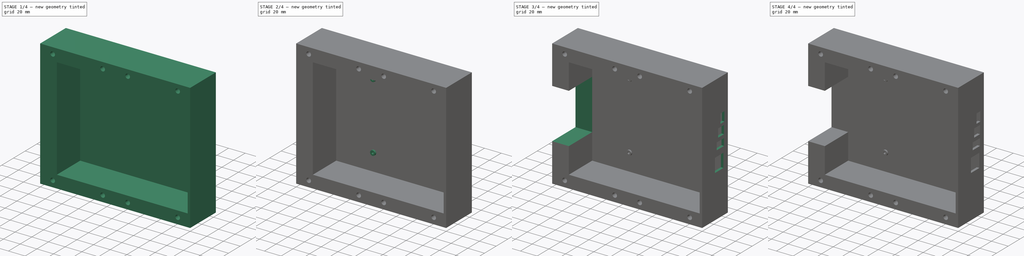
[diagram: build sequence overview — one tinted view per stage of 4, left to right]
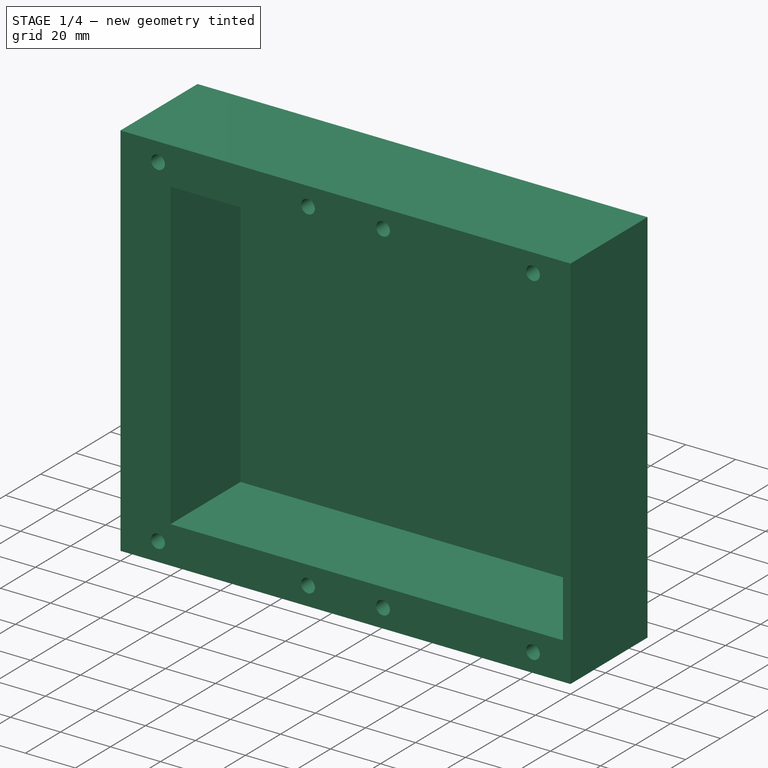
[diagram: stage 1 of 4 — iso view after this stage's code; geometry added in this stage tinted green]
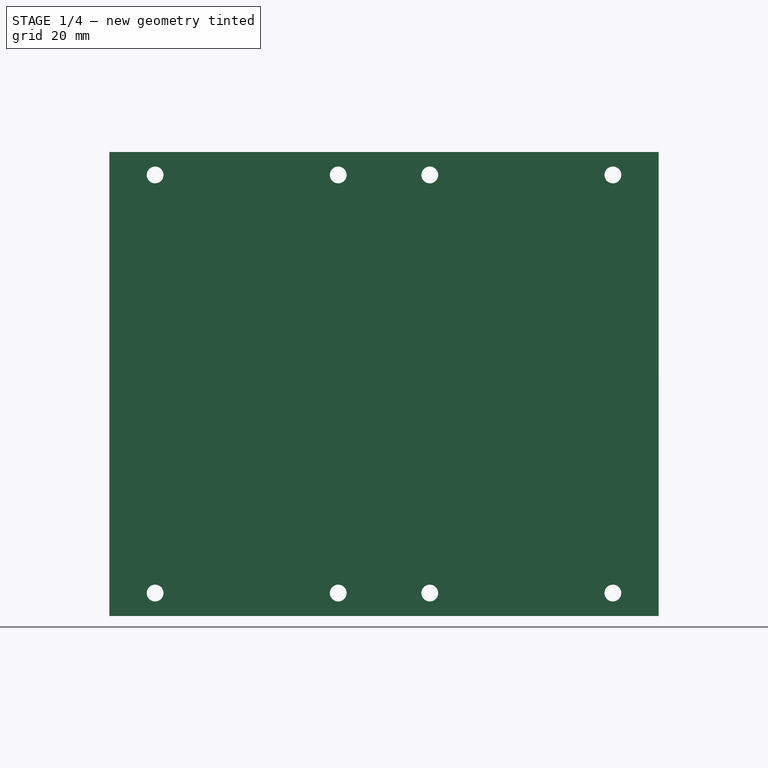
[diagram: stage 1 of 4 — front view after this stage's code; geometry added in this stage tinted green]
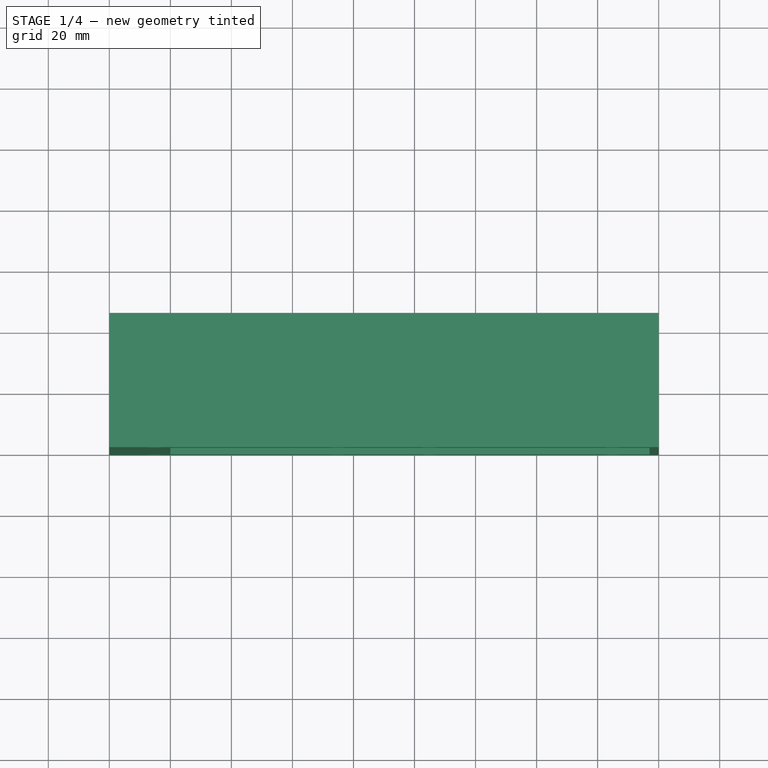
[diagram: stage 1 of 4 — top view after this stage's code; geometry added in this stage tinted green]
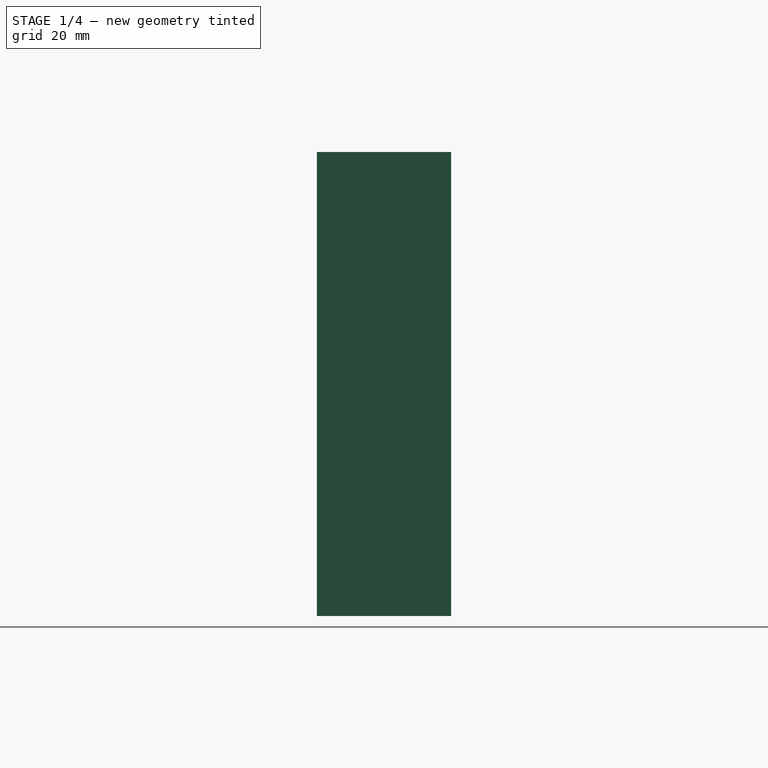
[diagram: stage 1 of 4 — right view after this stage's code; geometry added in this stage tinted green]
FCSTD DOCUMENT  (FreeCAD 1.0R39319 (Git))
Label: C1046
License: All rights reserved
LicenseURL: https://en.wikipedia.org/wiki/All_rights_reserved
objects: Sketcher::SketchObject×9, PartDesign::Pocket×7, PartDesign::Pad×3, PartDesign::Chamfer×2, PartDesign::Body×1
note: 55 computed .brp shape members not serialized (recipe doc carries the construction recipe); baked Part::Feature solids carry a one-line shape summary decoded from their .brp

FEATURE [Sketcher::SketchObject] Sketch
  ArcFitTolerance = 1e-06
  AttachmentSupport = -> [XZ_Plane]
  FullyConstrained = true
  MakeInternals = false
  MapMode = 5
  Placement = pos=(0,0,0) rot=(1,0,0;1.5708rad)
  expr: Constraints[9] = 90 * 2 * 1 mm
  sketch-geometry (12):
    g0: LineSegment StartX=0 StartY=0 StartZ=0 EndX=0 EndY=152 EndZ=0
    g1: LineSegment StartX=0 StartY=152 StartZ=0 EndX=-180 EndY=152 EndZ=0
    g2: LineSegment StartX=-180 StartY=152 StartZ=0 EndX=-180 EndY=0 EndZ=0
    g3: LineSegment StartX=-180 StartY=0 StartZ=0 EndX=0 EndY=0 EndZ=0
    g4: LineSegment StartX=-3 StartY=137 StartZ=0 EndX=-160 EndY=137 EndZ=0
    g5: LineSegment StartX=-160 StartY=137 StartZ=0 EndX=-160 EndY=15 EndZ=0
    g6: LineSegment StartX=-160 StartY=15 StartZ=0 EndX=-3 EndY=15 EndZ=0
    g7: LineSegment StartX=-3 StartY=15 StartZ=0 EndX=-3 EndY=137 EndZ=0
    g8: LineSegment [constr] StartX=-3 StartY=137 StartZ=0 EndX=0 EndY=152 EndZ=0
    g9: LineSegment [constr] StartX=-3 StartY=15 StartZ=0 EndX=0 EndY=0 EndZ=0
    g10: LineSegment [constr] StartX=-160 StartY=15 StartZ=0 EndX=-180 EndY=0 EndZ=0
    g11: LineSegment [constr] StartX=-160 StartY=137 StartZ=0 EndX=-180 EndY=152 EndZ=0
  constraints (32):
    c: Coincident(g0,g1)
    c: Coincident(g1,g2)
    c: Coincident(g2,g3)
    c: Coincident(g3,g0)
    c: Vertical(g0)
    c: Vertical(g2)
    c: Horizontal(g1)
    c: Horizontal(g3)
    c: Coincident(g0,g-1)
    c: DistanceX(g1,g1) = 180
    c: DistanceY(g2,g2) = 152
    c: Coincident(g4,g5)
    c: Coincident(g5,g6)
    c: Coincident(g6,g7)
    c: Coincident(g7,g4)
    c: Horizontal(g4)
    c: Horizontal(g6)
    c: Vertical(g5)
    c: Vertical(g7)
    c: Coincident(g8,g4)
    c: Coincident(g8,g0)
    c: Coincident(g9,g6)
    c: Coincident(g9,g0)
    c: Coincident(g10,g5)
    c: Coincident(g10,g2)
    c: Coincident(g11,g4)
    c: Coincident(g11,g1)
    c: DistanceY(g8,g8) = 15
    c: DistanceX(g8,g8) = 3
    c: DistanceX(g11,g11) = 20
    c: Equal(g9,g8)
    c: DistanceY(g7,g7) = 122
FEATURE [PartDesign::Pad] Pad
  Direction = (0,-1,2e-16)
  Length = 40
  Length2 = 10
  Placement = pos=(0,0,0) rot=(1,0,0;1.5708rad)
  Profile = -> Sketch
  ReferenceAxis = -> Sketch [N_Axis]
  Refine = true
  Suppressed = false
  Type = 0
FEATURE [Sketcher::SketchObject] Sketch001
  ArcFitTolerance = 1e-06
  AttachmentSupport = -> [Pad]
  ExternalGeometry = -> [Pad]
  FullyConstrained = true
  MakeInternals = false
  MapMode = 5
  Placement = pos=(0,1.69e-14,0) rot=(-1,0,0;1.5708rad)
  sketch-geometry (4):
    g0: LineSegment StartX=0 StartY=0 StartZ=0 EndX=-180 EndY=0 EndZ=0
    g1: LineSegment StartX=-180 StartY=0 StartZ=0 EndX=-180 EndY=-152 EndZ=0
    g2: LineSegment StartX=-180 StartY=-152 StartZ=0 EndX=0 EndY=-152 EndZ=0
    g3: LineSegment StartX=0 StartY=-152 StartZ=0 EndX=0 EndY=0 EndZ=0
  constraints (10):
    c: Coincident(g0,g1)
    c: Coincident(g1,g2)
    c: Coincident(g2,g3)
    c: Coincident(g3,g0)
    c: Horizontal(g0)
    c: Horizontal(g2)
    c: Vertical(g1)
    c: Vertical(g3)
    c: Coincident(g0,g-1)
    c: Coincident(g1,g-3)
FEATURE [PartDesign::Pad] Pad001
  BaseFeature = -> Pad
  Direction = (0,1,2e-16)
  Length = 4
  Length2 = 10
  Placement = pos=(0,0,0) rot=(1,0,0;1.5708rad)
  Profile = -> Sketch001
  ReferenceAxis = -> Sketch001 [N_Axis]
  Refine = true
  Suppressed = false
  Type = 0
FEATURE [Sketcher::SketchObject] Sketch002
  ArcFitTolerance = 1e-06
  AttachmentSupport = -> [Pad001]
  ExternalGeometry = -> [Pad001]
  FullyConstrained = true
  MakeInternals = false
  MapMode = 5
  Placement = pos=(0,4,0) rot=(-1,0,0;1.5708rad)
  sketch-geometry (28):
    g0: Circle CenterX=-75 CenterY=-7.5 CenterZ=0 NormalX=0 NormalY=0 NormalZ=1 AngleXU=0 Radius=2.75
    g1: Circle CenterX=-75 CenterY=-144.5 CenterZ=0 NormalX=0 NormalY=0 NormalZ=1 AngleXU=0 Radius=2.75
    g2: Circle CenterX=-15 CenterY=-7.5 CenterZ=0 NormalX=0 NormalY=0 NormalZ=1 AngleXU=0 Radius=2.75
    g3: Circle CenterX=-15 CenterY=-144.5 CenterZ=0 NormalX=0 NormalY=0 NormalZ=1 AngleXU=0 Radius=2.75
    g4: LineSegment [constr] StartX=-75 StartY=-7.5 StartZ=0 EndX=-15 EndY=-7.5 EndZ=0
    g5: LineSegment [constr] StartX=-15 StartY=-7.5 StartZ=0 EndX=-15 EndY=-144.5 EndZ=0
    g6: LineSegment [constr] StartX=-75 StartY=-144.5 StartZ=0 EndX=-15 EndY=-144.5 EndZ=0
    g7: LineSegment [constr] StartX=-75 StartY=-144.5 StartZ=0 EndX=-75 EndY=-7.5 EndZ=0
    g8: LineSegment [constr] StartX=-15 StartY=-144.5 StartZ=0 EndX=0 EndY=-152 EndZ=0
    g9: LineSegment [constr] StartX=-15 StartY=-7.5 StartZ=0 EndX=0 EndY=0 EndZ=0
    g10: LineSegment [constr] StartX=0 StartY=0 StartZ=0 EndX=-90 EndY=0 EndZ=0
    g11: LineSegment [constr] StartX=-90 StartY=0 StartZ=0 EndX=-90 EndY=-152 EndZ=0
    g12: LineSegment [constr] StartX=-90 StartY=-152 StartZ=0 EndX=0 EndY=-152 EndZ=0
    g13: LineSegment [constr] StartX=0 StartY=-152 StartZ=0 EndX=0 EndY=0 EndZ=0
    g14: LineSegment [constr] StartX=-90 StartY=-152 StartZ=0 EndX=-90 EndY=0 EndZ=0
    g15: LineSegment [constr] StartX=-90 StartY=0 StartZ=0 EndX=-180 EndY=0 EndZ=0
    g16: LineSegment [constr] StartX=-180 StartY=0 StartZ=0 EndX=-180 EndY=-152 EndZ=0
    g17: LineSegment [constr] StartX=-180 StartY=-152 StartZ=0 EndX=-90 EndY=-152 EndZ=0
    g18: Circle CenterX=-105 CenterY=-7.5 CenterZ=0 NormalX=0 NormalY=0 NormalZ=1 AngleXU=0 Radius=2.75
    g19: Circle CenterX=-165 CenterY=-7.5 CenterZ=0 NormalX=0 NormalY=0 NormalZ=1 AngleXU=0 Radius=2.75
    g20: Circle CenterX=-165 CenterY=-144.5 CenterZ=0 NormalX=0 NormalY=0 NormalZ=1 AngleXU=0 Radius=2.75
    g21: Circle CenterX=-105 CenterY=-144.5 CenterZ=0 NormalX=0 NormalY=0 NormalZ=1 AngleXU=0 Radius=2.75
    g22: LineSegment [constr] StartX=-75 StartY=-144.5 StartZ=0 EndX=-105 EndY=-144.5 EndZ=0
    g23: LineSegment [constr] StartX=-105 StartY=-144.5 StartZ=0 EndX=-165 EndY=-144.5 EndZ=0
    g24: LineSegment [constr] StartX=-165 StartY=-144.5 StartZ=0 EndX=-165 EndY=-7.5 EndZ=0
    g25: LineSegment [constr] StartX=-165 StartY=-7.5 StartZ=0 EndX=-105 EndY=-7.5 EndZ=0
    g26: LineSegment [constr] StartX=-105 StartY=-7.5 StartZ=0 EndX=-105 EndY=-144.5 EndZ=0
    g27: LineSegment [constr] StartX=-105 StartY=-7.5 StartZ=0 EndX=-75 EndY=-7.5 EndZ=0
  constraints (68):
    c: Coincident(g4,g0)
    c: Coincident(g4,g2)
    c: Coincident(g5,g2)
    c: Coincident(g5,g3)
    c: Coincident(g6,g1)
    c: Coincident(g6,g3)
    c: Coincident(g7,g1)
    c: Coincident(g7,g0)
    c: Vertical(g7)
    c: DistanceY(g7,g7) = 137
    c: DistanceX(g4,g4) = 60
    c: Horizontal(g4)
    c: Horizontal(g6)
    c: Vertical(g5)
    c: Diameter(g2) = 5.5
    c: Equal(g0,g2)
    c: Equal(g2,g3)
    c: Equal(g3,g1)
    c: Coincident(g8,g3)
    c: Coincident(g9,g2)
    c: Equal(g9,g8)
    c: DistanceX(g9,g9) = 15
    c: Coincident(g8,g-3)
    c: Coincident(g9,g-1)
    c: Coincident(g10,g11)
    c: Coincident(g11,g12)
    c: Coincident(g12,g13)
    c: Coincident(g13,g10)
    c: Horizontal(g10)
    c: Horizontal(g12)
    c: Vertical(g11)
    c: Coincident(g10,g9)
    c: Coincident(g14,g15)
    c: Coincident(g15,g16)
    c: Coincident(g16,g17)
    c: Coincident(g17,g14)
    c: Vertical(g16)
    c: Horizontal(g15)
    c: Horizontal(g17)
    c: Coincident(g14,g11)
    c: Coincident(g14,g10)
    c: DistanceX(g12,g12) = 90
    c: DistanceX(g17,g17) = 90
    c: Coincident(g8,g12)
    c: Coincident(g22,g1)
    c: Coincident(g22,g21)
    c: Coincident(g23,g21)
    c: Coincident(g23,g20)
    c: Horizontal(g23)
    c: Coincident(g24,g20)
    c: Coincident(g24,g19)
    c: Coincident(g25,g19)
    c: Coincident(g25,g18)
    c: Horizontal(g25)
    c: Coincident(g26,g18)
    c: Coincident(g26,g21)
    c: Vertical(g26)
    c: Horizontal(g22)
    c: Equal(g21,g20)
    c: Equal(g20,g18)
    c: Equal(g18,g19)
    c: Equal(g19,g0)
    c: Vertical(g24)
    c: DistanceX(g21,g11) = 15
    c: Coincident(g27,g0)
    c: Horizontal(g27)
    c: Coincident(g18,g27)
    c: Equal(g25,g4)
FEATURE [PartDesign::Pocket] Pocket
  BaseFeature = -> Pad001
  Direction = (0,-1,-2e-16)
  Length = 5
  Length2 = 5
  Placement = pos=(0,0,0) rot=(1,0,0;1.5708rad)
  Profile = -> Sketch002
  ReferenceAxis = -> Sketch002 [N_Axis]
  Refine = true
  Suppressed = false
  Type = 1
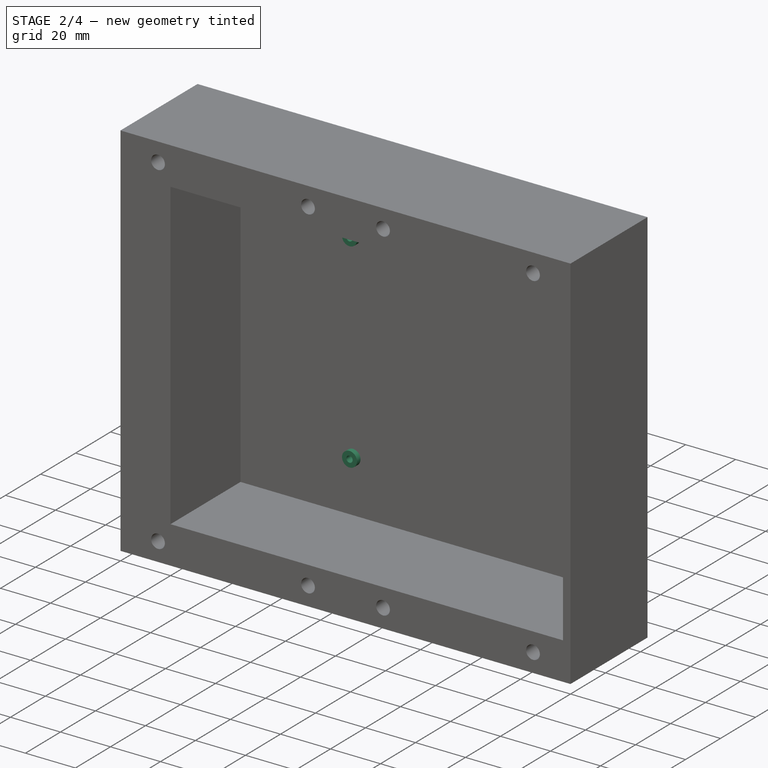
[diagram: stage 2 of 4 — iso view after this stage's code; geometry added in this stage tinted green]
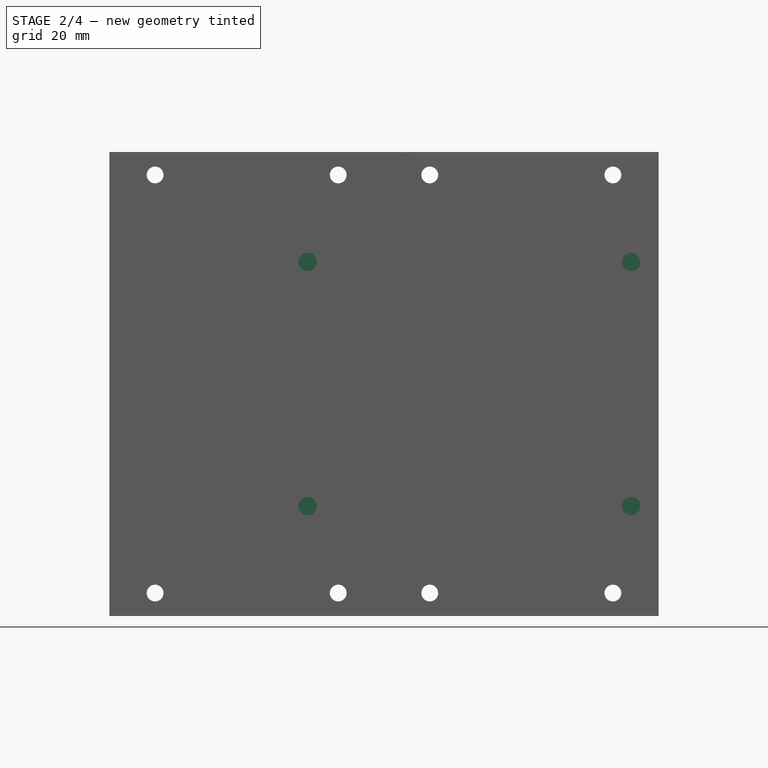
[diagram: stage 2 of 4 — front view after this stage's code; geometry added in this stage tinted green]
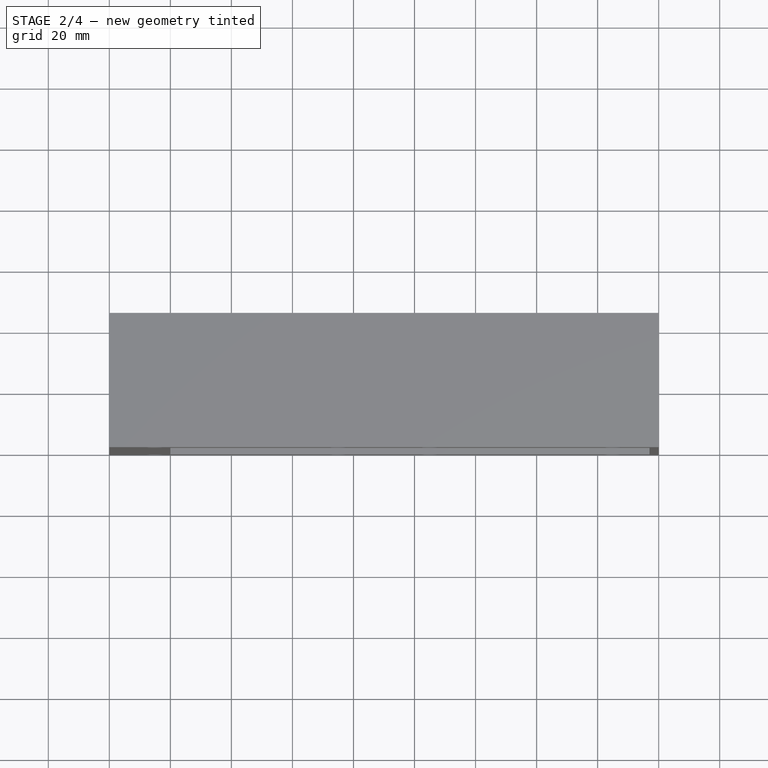
[diagram: stage 2 of 4 — top view after this stage's code; geometry added in this stage tinted green]
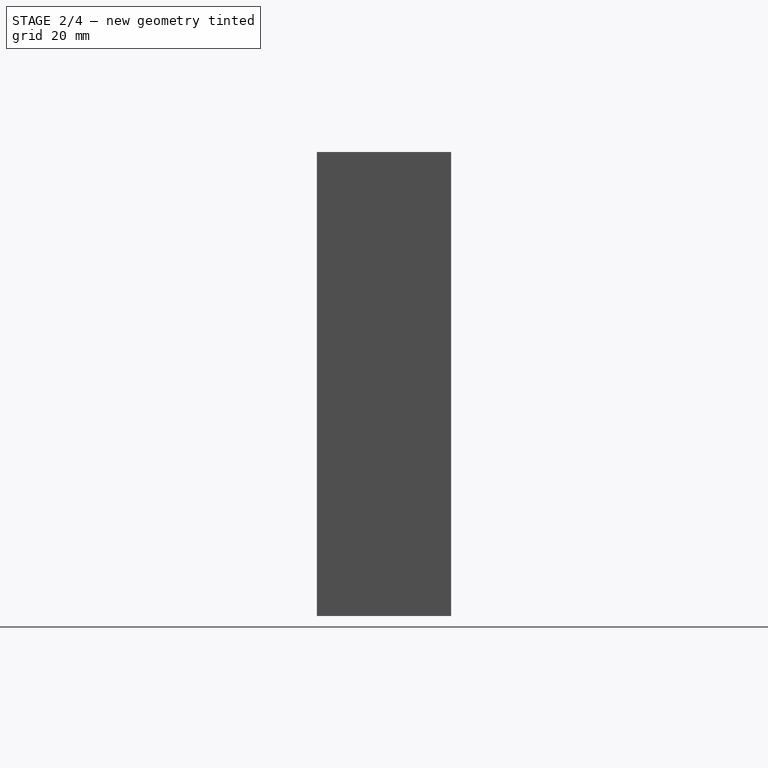
[diagram: stage 2 of 4 — right view after this stage's code; geometry added in this stage tinted green]
FEATURE [Sketcher::SketchObject] Sketch003
  ArcFitTolerance = 1e-06
  AttachmentSupport = -> [Pocket]
  ExternalGeometry = -> [Pocket]
  FullyConstrained = true
  MakeInternals = false
  MapMode = 5
  Placement = pos=(0,4,0) rot=(-1,0,0;1.5708rad)
  sketch-geometry (8):
    g0: Circle CenterX=-15 CenterY=-144.5 CenterZ=0 NormalX=0 NormalY=0 NormalZ=1 AngleXU=0 Radius=5
    g1: Circle CenterX=-15 CenterY=-7.5 CenterZ=0 NormalX=0 NormalY=0 NormalZ=1 AngleXU=0 Radius=5
    g2: Circle CenterX=-75 CenterY=-7.5 CenterZ=0 NormalX=0 NormalY=0 NormalZ=1 AngleXU=0 Radius=5
    g3: Circle CenterX=-105 CenterY=-7.5 CenterZ=0 NormalX=0 NormalY=0 NormalZ=1 AngleXU=0 Radius=5
    g4: Circle CenterX=-165 CenterY=-7.5 CenterZ=0 NormalX=0 NormalY=0 NormalZ=1 AngleXU=0 Radius=5
    g5: Circle CenterX=-165 CenterY=-144.5 CenterZ=0 NormalX=0 NormalY=0 NormalZ=1 AngleXU=0 Radius=5
    g6: Circle CenterX=-105 CenterY=-144.5 CenterZ=0 NormalX=0 NormalY=0 NormalZ=1 AngleXU=0 Radius=5
    g7: Circle CenterX=-75 CenterY=-144.5 CenterZ=0 NormalX=0 NormalY=0 NormalZ=1 AngleXU=0 Radius=5
  constraints (16):
    c: Coincident(g0,g-10)
    c: Coincident(g1,g-3)
    c: Coincident(g2,g-4)
    c: Coincident(g3,g-5)
    c: Coincident(g4,g-6)
    c: Coincident(g5,g-7)
    c: Coincident(g6,g-8)
    c: Coincident(g7,g-9)
    c: Equal(g1,g2)
    c: Equal(g2,g3)
    c: Equal(g3,g4)
    c: Equal(g4,g0)
    c: Equal(g0,g5)
    c: Equal(g5,g6)
    c: Equal(g6,g7)
    c: Diameter(g1) = 10
FEATURE [PartDesign::Pocket] Pocket001
  BaseFeature = -> Pocket
  Direction = (0,-1,-2e-16)
  Length = 34
  Length2 = 5
  Placement = pos=(0,0,0) rot=(1,0,0;1.5708rad)
  Profile = -> Sketch003
  ReferenceAxis = -> Sketch003 [N_Axis]
  Refine = true
  Suppressed = false
  Type = 0
FEATURE [Sketcher::SketchObject] Sketch004
  ArcFitTolerance = 1e-06
  AttachmentSupport = -> [Pocket001]
  ExternalGeometry = -> [Pocket001]
  FullyConstrained = true
  MakeInternals = false
  MapMode = 5
  Placement = pos=(0,0,0) rot=(1,0,0;1.5708rad)
  sketch-geometry (21):
    g0: LineSegment [constr] StartX=-4 StartY=121 StartZ=0 EndX=-120 EndY=121 EndZ=0
    g1: LineSegment [constr] StartX=-120 StartY=121 StartZ=0 EndX=-120 EndY=31 EndZ=0
    g2: LineSegment [constr] StartX=-120 StartY=31 StartZ=0 EndX=-4 EndY=31 EndZ=0
    g3: LineSegment [constr] StartX=-4 StartY=31 StartZ=0 EndX=-4 EndY=121 EndZ=0
    g4: LineSegment [constr] StartX=-3 StartY=137 StartZ=0 EndX=-4 EndY=121 EndZ=0
    g5: LineSegment [constr] StartX=-4 StartY=31 StartZ=0 EndX=-3 EndY=15 EndZ=0
    g6: Circle CenterX=-9 CenterY=116 CenterZ=0 NormalX=0 NormalY=0 NormalZ=1 AngleXU=0 Radius=1.25
    g7: Circle CenterX=-9 CenterY=36 CenterZ=0 NormalX=0 NormalY=0 NormalZ=1 AngleXU=0 Radius=1.25
    g8: Circle CenterX=-115 CenterY=36 CenterZ=0 NormalX=0 NormalY=0 NormalZ=1 AngleXU=0 Radius=1.25
    g9: Circle CenterX=-115 CenterY=116 CenterZ=0 NormalX=0 NormalY=0 NormalZ=1 AngleXU=0 Radius=1.25
    g10: Circle CenterX=-115 CenterY=116 CenterZ=0 NormalX=0 NormalY=0 NormalZ=1 AngleXU=0 Radius=3
    g11: Circle CenterX=-9 CenterY=116 CenterZ=0 NormalX=0 NormalY=0 NormalZ=1 AngleXU=0 Radius=3
    g12: Circle CenterX=-115 CenterY=36 CenterZ=0 NormalX=0 NormalY=0 NormalZ=1 AngleXU=0 Radius=3
    g13: Circle CenterX=-9 CenterY=36 CenterZ=0 NormalX=0 NormalY=0 NormalZ=1 AngleXU=0 Radius=3
    g14: LineSegment [constr] StartX=-4 StartY=121 StartZ=0 EndX=-9 EndY=116 EndZ=0
    g15: LineSegment [constr] StartX=-9 StartY=36 StartZ=0 EndX=-4 EndY=31 EndZ=0
    g16: LineSegment [constr] StartX=-115 StartY=36 StartZ=0 EndX=-120 EndY=31 EndZ=0
    g17: LineSegment [constr] StartX=-115 StartY=116 StartZ=0 EndX=-120 EndY=121 EndZ=0
    g18: LineSegment [constr] StartX=-9 StartY=116 StartZ=0 EndX=-9 EndY=36 EndZ=0
    g19: LineSegment [constr] StartX=-9 StartY=36 StartZ=0 EndX=-115 EndY=36 EndZ=0
    g20: LineSegment [constr] StartX=-9 StartY=116 StartZ=0 EndX=-115 EndY=116 EndZ=0
  constraints (50):
    c: Coincident(g0,g1)
    c: Coincident(g1,g2)
    c: Coincident(g2,g3)
    c: Coincident(g3,g0)
    c: Horizontal(g0)
    c: Horizontal(g2)
    c: Vertical(g1)
    c: Vertical(g3)
    c: DistanceY(g1,g1) = 90
    c: DistanceX(g0,g0) = 116
    c: Coincident(g4,g-3)
    c: Coincident(g4,g0)
    c: Coincident(g5,g2)
    c: Coincident(g5,g-3)
    c: Equal(g4,g5)
    c: DistanceX(g4,g4) = 1
    c: Coincident(g10,g9)
    c: Coincident(g11,g6)
    c: Coincident(g12,g8)
    c: Coincident(g13,g7)
    c: Equal(g7,g6)
    c: Equal(g6,g9)
    c: Equal(g9,g8)
    c: Equal(g12,g13)
    c: Equal(g13,g10)
    c: Diameter(g6) = 2.5
    c: Diameter(g11) = 6
    c: Equal(g11,g13)
    c: Coincident(g14,g0)
    c: Coincident(g14,g6)
    c: Coincident(g15,g7)
    c: Coincident(g15,g2)
    c: Coincident(g16,g8)
    c: Coincident(g16,g1)
    c: Coincident(g17,g9)
    c: Coincident(g17,g0)
    c: Equal(g17,g14)
    c: Equal(g14,g15)
    c: Equal(g15,g16)
    c: DistanceY(g15,g15) = 5
    c: DistanceX(g15,g15) = 5
    c: Coincident(g18,g6)
    c: Coincident(g18,g7)
    c: Vertical(g18)
    c: Coincident(g19,g7)
    c: Coincident(g19,g8)
    c: Horizontal(g19)
    c: Coincident(g20,g6)
    c: Coincident(g20,g9)
    c: Horizontal(g20)
FEATURE [PartDesign::Pad] Pad002
  BaseFeature = -> Pocket001
  Direction = (0,-1,2e-16)
  Length = 2
  Length2 = 10
  Placement = pos=(0,0,0) rot=(1,0,0;1.5708rad)
  Profile = -> Sketch004
  ReferenceAxis = -> Sketch004 [N_Axis]
  Refine = true
  Suppressed = false
  Type = 0
FEATURE [PartDesign::Pocket] Pocket002
  BaseFeature = -> Pad002
  Direction = (0,1,0)
  Length = 2
  Length2 = 5
  Placement = pos=(0,0,0) rot=(1,0,0;1.5708rad)
  Profile = -> Pad002 [Face48,Face50,Face51,Face49]
  Refine = true
  Suppressed = false
  Type = 0
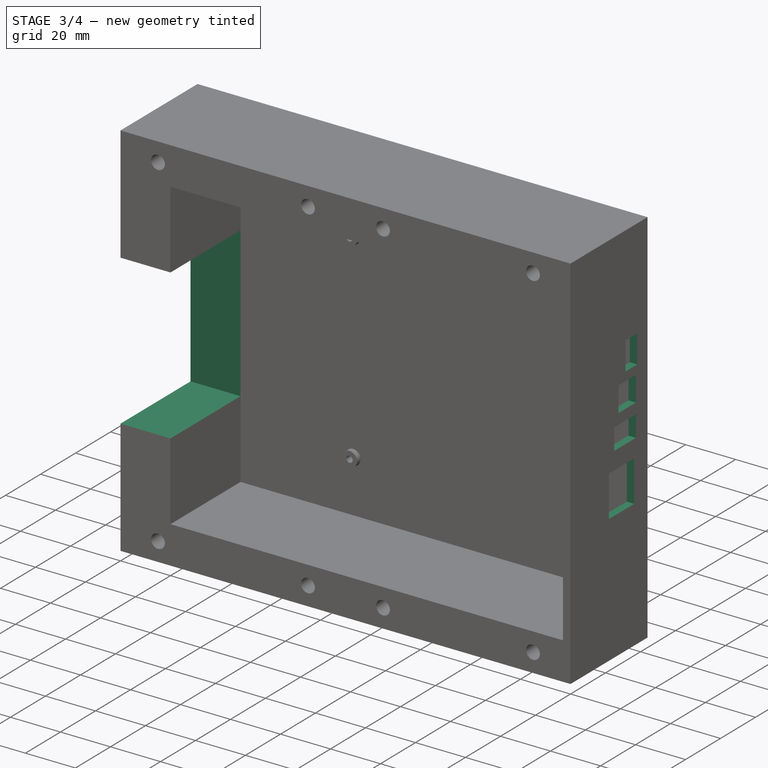
[diagram: stage 3 of 4 — iso view after this stage's code; geometry added in this stage tinted green]
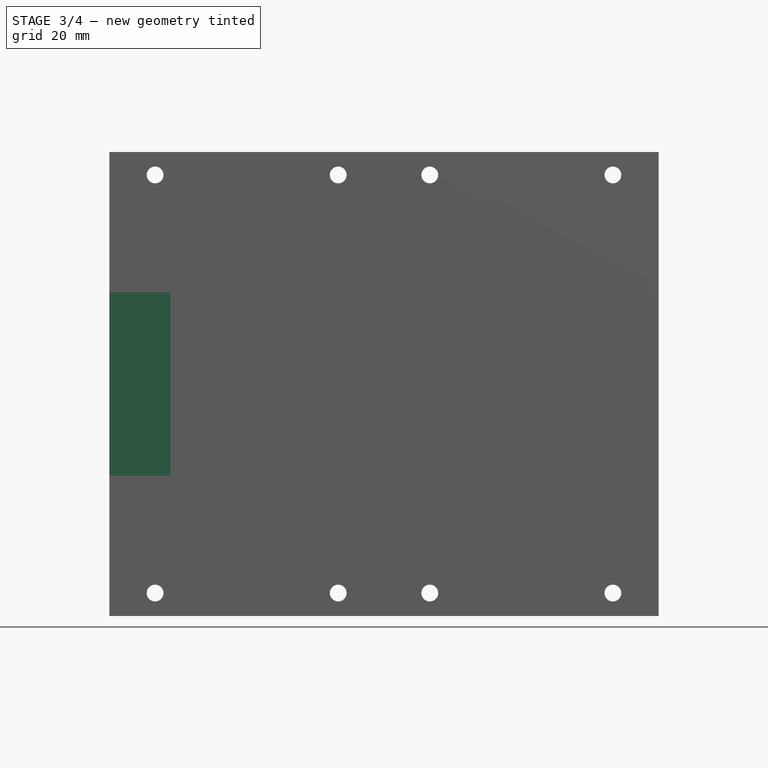
[diagram: stage 3 of 4 — front view after this stage's code; geometry added in this stage tinted green]
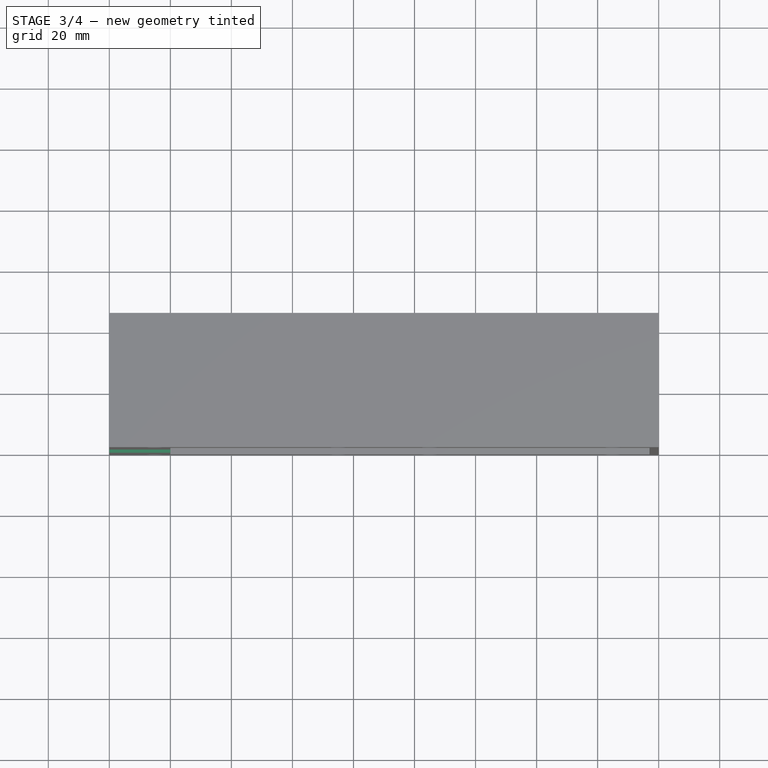
[diagram: stage 3 of 4 — top view after this stage's code; geometry added in this stage tinted green]
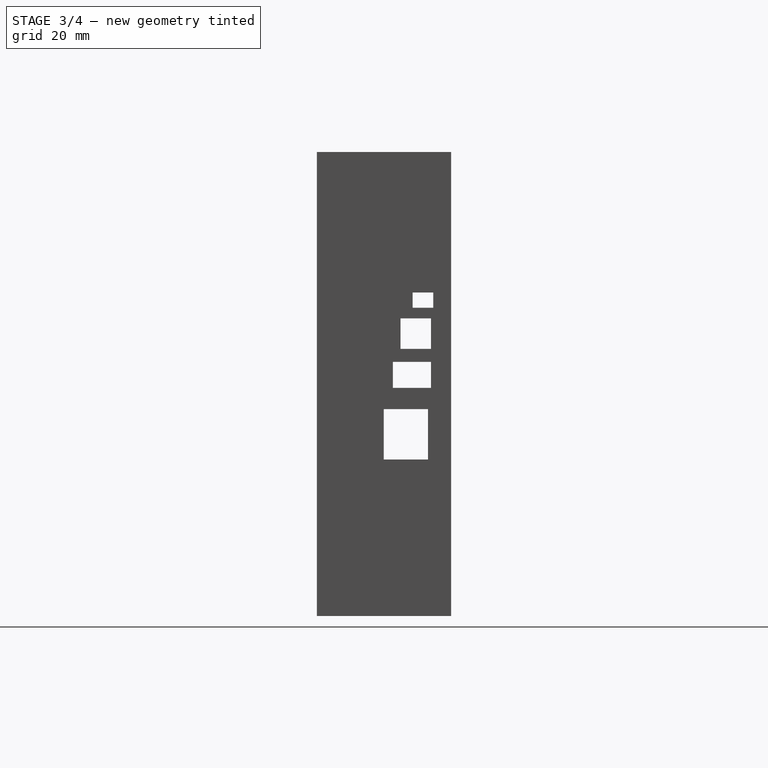
[diagram: stage 3 of 4 — right view after this stage's code; geometry added in this stage tinted green]
FEATURE [Sketcher::SketchObject] Sketch005
  ArcFitTolerance = 1e-06
  AttachmentSupport = -> [Pocket002]
  ExternalGeometry = -> [Pocket002]
  FullyConstrained = true
  MakeInternals = false
  MapMode = 5
  Placement = pos=(0,0,0) rot=(0.707107,0,0.707107;3.14159rad)
  expr: Constraints[30] = 3.75 mm + 2.5 mm + 0.5 mm
  expr: Constraints[6] = 3.6 mm
  sketch-geometry (25):
    g0: LineSegment [constr] StartX=31 StartY=3.6 StartZ=0 EndX=121 EndY=3.6 EndZ=0
    g1: LineSegment [constr] StartX=121 StartY=3.6 StartZ=0 EndX=137 EndY=0 EndZ=0
    g2: LineSegment [constr] StartX=31 StartY=3.6 StartZ=0 EndX=15 EndY=0 EndZ=0
    g3: LineSegment StartX=51.25 StartY=3.6 StartZ=0 EndX=67.75 EndY=3.6 EndZ=0
    g4: LineSegment StartX=67.75 StartY=3.6 StartZ=0 EndX=67.75 EndY=18.1 EndZ=0
    g5: LineSegment StartX=67.75 StartY=18.1 StartZ=0 EndX=51.25 EndY=18.1 EndZ=0
    g6: LineSegment StartX=51.25 StartY=18.1 StartZ=0 EndX=51.25 EndY=3.6 EndZ=0
    g7: LineSegment StartX=112.225 StartY=1.85 StartZ=0 EndX=112.225 EndY=8.6 EndZ=0
    g8: LineSegment StartX=112.225 StartY=8.6 StartZ=0 EndX=100.975 EndY=8.6 EndZ=0
    g9: LineSegment StartX=100.975 StartY=8.6 StartZ=0 EndX=100.975 EndY=1.85 EndZ=0
    g10: LineSegment StartX=100.975 StartY=1.85 StartZ=0 EndX=112.225 EndY=1.85 EndZ=0
    g11: GeomPoint X=59.5 Y=3.6 Z=0
    g12: GeomPoint X=106.6 Y=1.85 Z=0
    g13: LineSegment StartX=74.75 StartY=2.6 StartZ=0 EndX=74.75 EndY=15.1 EndZ=0
    g14: LineSegment StartX=74.75 StartY=15.1 StartZ=0 EndX=83.25 EndY=15.1 EndZ=0
    g15: LineSegment StartX=83.25 StartY=15.1 StartZ=0 EndX=83.25 EndY=2.6 EndZ=0
    g16: LineSegment StartX=87.5 StartY=2.6 StartZ=0 EndX=97.5 EndY=2.6 EndZ=0
    g17: LineSegment StartX=97.5 StartY=2.6 StartZ=0 EndX=97.5 EndY=12.6 EndZ=0
    g18: LineSegment StartX=97.5 StartY=12.6 StartZ=0 EndX=87.5 EndY=12.6 EndZ=0
    g19: LineSegment StartX=87.5 StartY=12.6 StartZ=0 EndX=87.5 EndY=2.6 EndZ=0
    g20: GeomPoint X=92.5 Y=2.6 Z=0
    g21: LineSegment StartX=83.25 StartY=2.6 StartZ=0 EndX=74.75 EndY=2.6 EndZ=0
    g22: GeomPoint X=79 Y=2.6 Z=0
    g23: LineSegment [constr] StartX=106.6 StartY=1.85 StartZ=0 EndX=106.6 EndY=3.6 EndZ=0
    g24: LineSegment [constr] StartX=79 StartY=2.6 StartZ=0 EndX=79 EndY=3.6 EndZ=0
  constraints (66):
    c: Horizontal(g0)
    c: DistanceX(g0,g0) = 90
    c: Coincident(g1,g0)
    c: Coincident(g1,g-5)
    c: Coincident(g2,g0)
    c: Coincident(g2,g-5)
    c: DistanceY(g2,g2) = 3.6
    c: Equal(g2,g1)
    c: Coincident(g3,g4)
    c: Coincident(g4,g5)
    c: Coincident(g5,g6)
    c: Coincident(g6,g3)
    c: Horizontal(g3)
    c: Horizontal(g5)
    c: Vertical(g4)
    c: Vertical(g6)
    c: PointOnObject(g3,g0)
    c: Coincident(g7,g8)
    c: Coincident(g8,g9)
    c: Coincident(g9,g10)
    c: Coincident(g10,g7)
    c: Vertical(g7)
    c: Vertical(g9)
    c: Horizontal(g8)
    c: Horizontal(g10)
    c: DistanceX(g5,g5) = 16.5
    c: DistanceY(g6,g6) = 14.5
    c: Symmetric(g3,g3,g11)
    c: DistanceX(g0,g11) = 28.5
    c: DistanceX(g8,g8) = 11.25
    c: DistanceY(g9,g9) = 6.75
    c: Symmetric(g10,g10,g12)
    c: DistanceX(g0,g12) = 75.6
    c: Coincident(g13,g14)
    c: Coincident(g14,g15)
    c: Horizontal(g14)
    c: Vertical(g13)
    c: Vertical(g15)
    c: DistanceY(g15,g15) = 12.5
    c: Coincident(g16,g17)
    c: Coincident(g17,g18)
    c: Coincident(g18,g19)
    c: Coincident(g19,g16)
    c: Horizontal(g16)
    c: Horizontal(g18)
    c: Vertical(g17)
    c: Vertical(g19)
    c: DistanceX(g18,g18) = 10
    c: DistanceY(g19,g19) = 10
    c: Symmetric(g16,g16,g20)
    c: DistanceX(g0,g20) = 61.5
    c: Coincident(g21,g15)
    c: Coincident(g21,g13)
    c: Horizontal(g21)
    c: Symmetric(g21,g21,g22)
    c: DistanceX(g0,g22) = 48
    c: DistanceX(g14,g14) = 8.5
    c: Coincident(g23,g12)
    c: PointOnObject(g23,g0)
    c: Vertical(g23)
    c: DistanceY(g23,g23) = 1.75
    c: Coincident(g24,g22)
    c: PointOnObject(g24,g0)
    c: Vertical(g24)
    c: DistanceY(g24,g24) = 1
    c: Distance(g16,g0) = 1
FEATURE [PartDesign::Pocket] Pocket003
  BaseFeature = -> Pocket002
  Direction = (-1,0,2e-16)
  Length = 5
  Length2 = 5
  Placement = pos=(0,0,0) rot=(1,0,0;1.5708rad)
  Profile = -> Sketch005
  ReferenceAxis = -> Sketch005 [N_Axis]
  Refine = true
  Suppressed = false
  Type = 2
FEATURE [Sketcher::SketchObject] Sketch006
  ArcFitTolerance = 1e-06
  AttachmentSupport = -> [Pocket003]
  ExternalGeometry = -> [Pocket003]
  FullyConstrained = true
  MakeInternals = false
  MapMode = 5
  Placement = pos=(0,4,0) rot=(-1,0,0;1.5708rad)
  sketch-geometry (13):
    g0: LineSegment StartX=-180 StartY=-26.125 StartZ=0 EndX=-180 EndY=-35.875 EndZ=0
    g1: LineSegment StartX=-180 StartY=-35.875 StartZ=0 EndX=-165 EndY=-35.875 EndZ=0
    g2: LineSegment StartX=-165 StartY=-35.875 StartZ=0 EndX=-165 EndY=-26.125 EndZ=0
    g3: LineSegment StartX=-165 StartY=-26.125 StartZ=0 EndX=-180 EndY=-26.125 EndZ=0
    g4: LineSegment StartX=-180 StartY=-116.125 StartZ=0 EndX=-180 EndY=-125.875 EndZ=0
    g5: LineSegment StartX=-180 StartY=-125.875 StartZ=0 EndX=-165 EndY=-125.875 EndZ=0
    g6: LineSegment StartX=-165 StartY=-125.875 StartZ=0 EndX=-165 EndY=-116.125 EndZ=0
    g7: LineSegment StartX=-165 StartY=-116.125 StartZ=0 EndX=-180 EndY=-116.125 EndZ=0
    g8: LineSegment [constr] StartX=-165 StartY=-125.875 StartZ=0 EndX=-180 EndY=-152 EndZ=0
    g9: LineSegment [constr] StartX=-165 StartY=-116.125 StartZ=0 EndX=-165 EndY=-35.875 EndZ=0
    g10: LineSegment [constr] StartX=-165 StartY=-26.125 StartZ=0 EndX=-180 EndY=0 EndZ=0
    g11: GeomPoint X=-165 Y=-31 Z=0
    g12: GeomPoint X=-165 Y=-121 Z=0
  constraints (32):
    c: Coincident(g0,g1)
    c: Coincident(g1,g2)
    c: Coincident(g2,g3)
    c: Coincident(g3,g0)
    c: Vertical(g0)
    c: Vertical(g2)
    c: Horizontal(g1)
    c: Horizontal(g3)
    c: PointOnObject(g0,g-3)
    c: Coincident(g4,g5)
    c: Coincident(g5,g6)
    c: Coincident(g6,g7)
    c: Coincident(g7,g4)
    c: Vertical(g4)
    c: Vertical(g6)
    c: Horizontal(g5)
    c: Horizontal(g7)
    c: PointOnObject(g4,g-3)
    c: Coincident(g8,g5)
    c: Coincident(g8,g-3)
    c: Coincident(g9,g6)
    c: Coincident(g9,g1)
    c: Vertical(g9)
    c: Coincident(g10,g2)
    c: Coincident(g10,g-3)
    c: Equal(g8,g10)
    c: Equal(g2,g6)
    c: DistanceY(g6,g6) = 9.75
    c: DistanceX(g5,g5) = 15
    c: Symmetric(g2,g2,g11)
    c: Symmetric(g6,g6,g12)
    c: DistanceY(g12,g11) = 90
FEATURE [PartDesign::Pocket] Pocket004
  BaseFeature = -> Pocket003
  Direction = (0,-1,-2e-16)
  Length = 4
  Length2 = 5
  Placement = pos=(0,0,0) rot=(1,0,0;1.5708rad)
  Profile = -> Sketch006
  ReferenceAxis = -> Sketch006 [N_Axis]
  Refine = true
  Suppressed = false
  Type = 0
FEATURE [Sketcher::SketchObject] Sketch007
  ArcFitTolerance = 1e-06
  AttachmentSupport = -> [Pocket004]
  ExternalGeometry = -> [Pocket004]
  FullyConstrained = true
  MakeInternals = false
  MapMode = 5
  Placement = pos=(0,-40,0) rot=(1,0,0;1.5708rad)
  sketch-geometry (6):
    g0: LineSegment StartX=-160 StartY=106 StartZ=0 EndX=-180 EndY=106 EndZ=0
    g1: LineSegment StartX=-180 StartY=106 StartZ=0 EndX=-180 EndY=46 EndZ=0
    g2: LineSegment StartX=-180 StartY=46 StartZ=0 EndX=-160 EndY=46 EndZ=0
    g3: LineSegment StartX=-160 StartY=46 StartZ=0 EndX=-160 EndY=106 EndZ=0
    g4: LineSegment [constr] StartX=-160 StartY=106 StartZ=0 EndX=-180 EndY=152 EndZ=0
    g5: LineSegment [constr] StartX=-160 StartY=46 StartZ=0 EndX=-180 EndY=2.84e-14 EndZ=0
  constraints (16):
    c: Coincident(g0,g1)
    c: Coincident(g1,g2)
    c: Coincident(g2,g3)
    c: Coincident(g3,g0)
    c: Horizontal(g0)
    c: Horizontal(g2)
    c: Vertical(g1)
    c: Vertical(g3)
    c: PointOnObject(g0,g-3)
    c: PointOnObject(g0,g-6)
    c: DistanceY(g3,g3) = 60
    c: Coincident(g4,g0)
    c: Coincident(g4,g-6)
    c: Coincident(g5,g2)
    c: Coincident(g5,g-6)
    c: Equal(g5,g4)
FEATURE [PartDesign::Pocket] Pocket005
  BaseFeature = -> Pocket004
  Direction = (0,1,-2e-16)
  Length = 0
  Length2 = 5
  Placement = pos=(0,0,0) rot=(1,0,0;1.5708rad)
  Profile = -> Sketch007
  ReferenceAxis = -> Sketch007 [N_Axis]
  Refine = true
  Suppressed = false
  Type = 3
  UpToFace = -> Pocket004 [Face5]
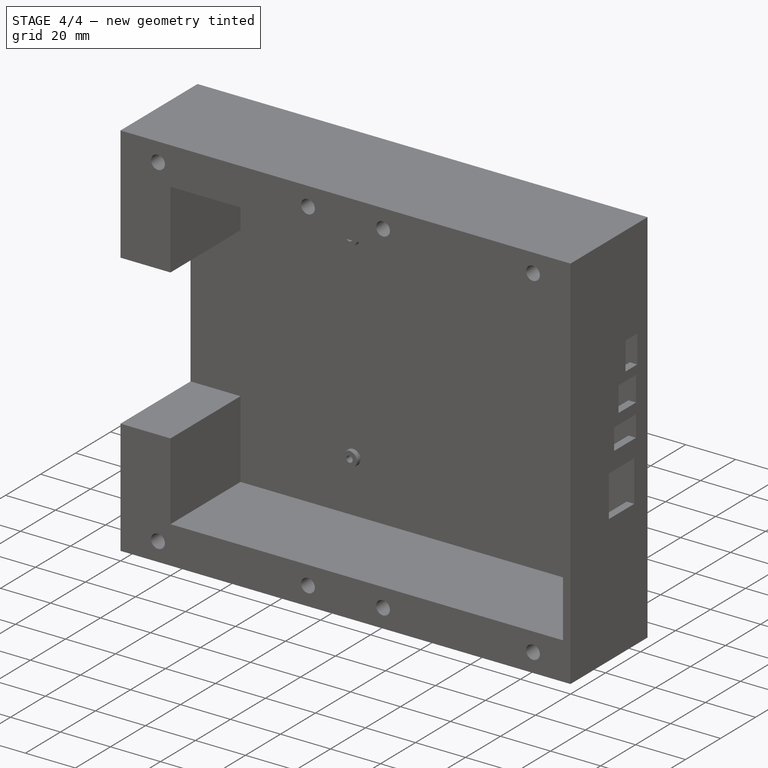
[diagram: stage 4 of 4 — iso view after this stage's code; geometry added in this stage tinted green]
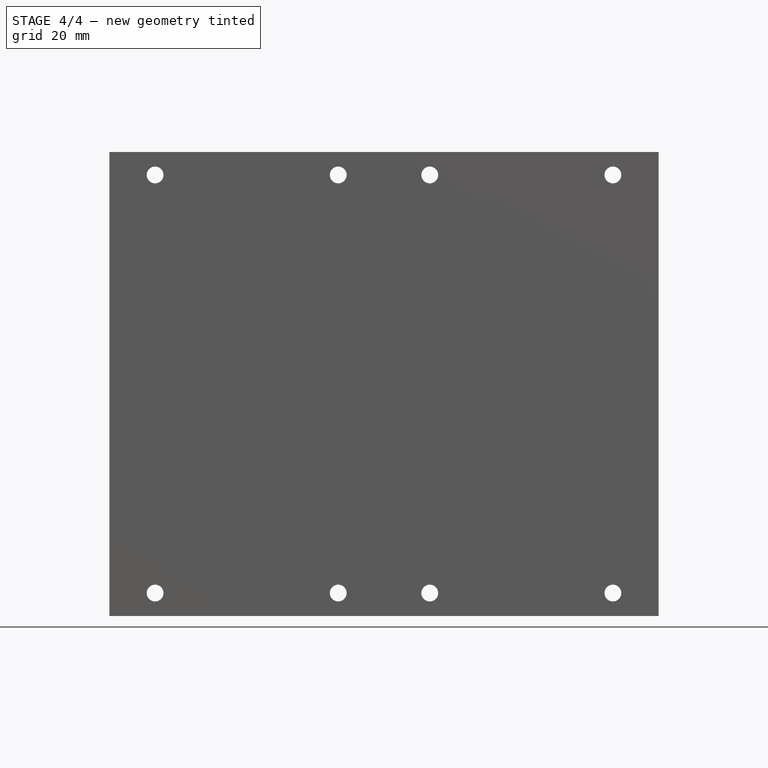
[diagram: stage 4 of 4 — front view after this stage's code; geometry added in this stage tinted green]
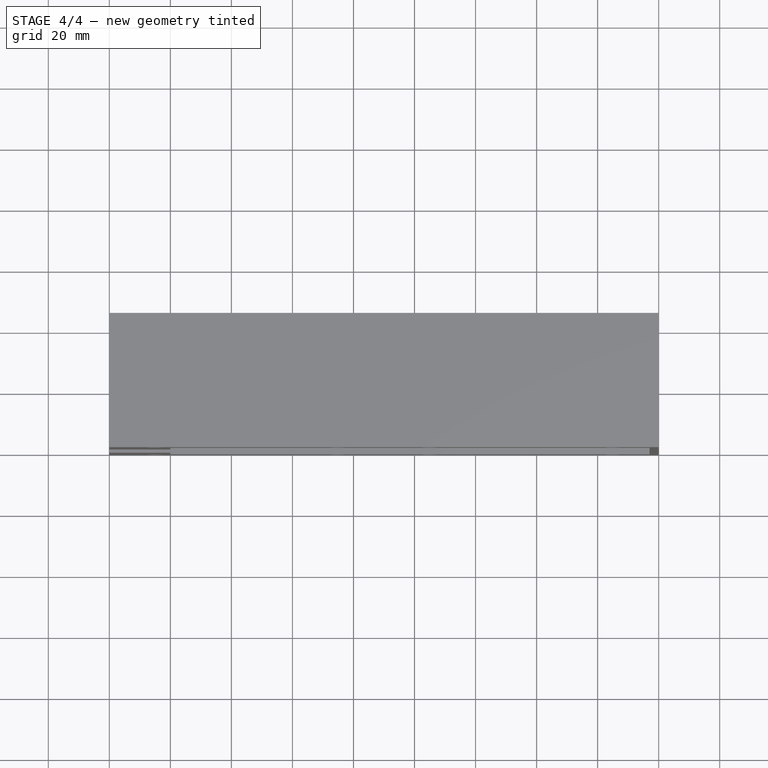
[diagram: stage 4 of 4 — top view after this stage's code; geometry added in this stage tinted green]
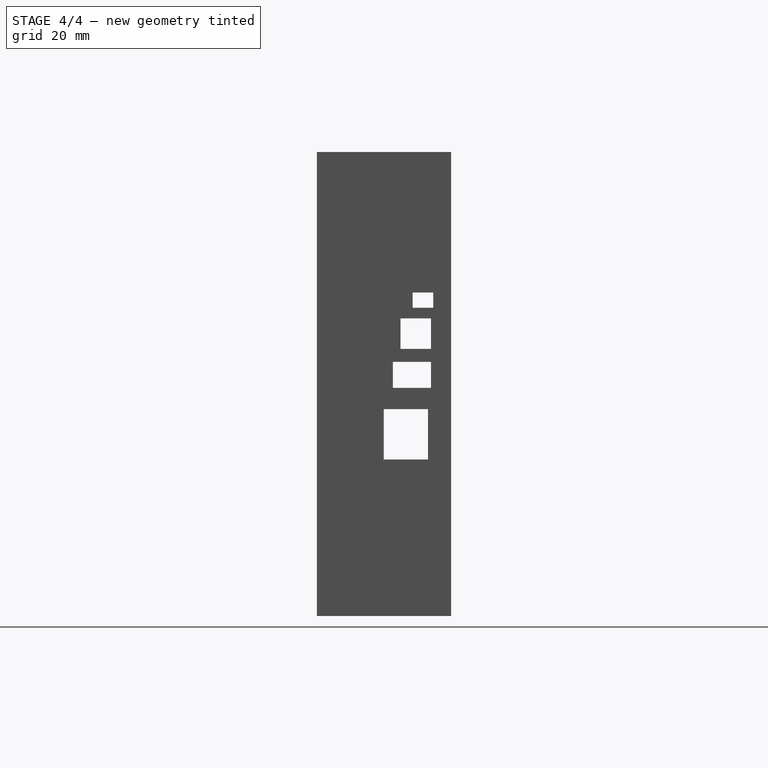
[diagram: stage 4 of 4 — right view after this stage's code; geometry added in this stage tinted green]
FEATURE [Sketcher::SketchObject] Sketch008
  ArcFitTolerance = 1e-06
  AttachmentSupport = -> [Pocket005]
  ExternalGeometry = -> [Pocket005]
  FullyConstrained = true
  MakeInternals = false
  MapMode = 5
  Placement = pos=(-180,0,0) rot=(0.707107,0,-0.707107;3.14159rad)
  sketch-geometry (7):
    g0: LineSegment [constr] StartX=-152 StartY=40 StartZ=0 EndX=-144.5 EndY=30 EndZ=0
    g1: LineSegment [constr] StartX=-144.5 StartY=30 StartZ=0 EndX=-137 EndY=40 EndZ=0
    g2: LineSegment [constr] StartX=-2.13e-14 StartY=40 StartZ=0 EndX=-7.5 EndY=30 EndZ=0
    g3: LineSegment [constr] StartX=-7.5 StartY=30 StartZ=0 EndX=-15 EndY=40 EndZ=0
    g4: LineSegment [constr] StartX=-7.5 StartY=30 StartZ=0 EndX=-144.5 EndY=30 EndZ=0
    g5: Circle CenterX=-144.5 CenterY=30 CenterZ=0 NormalX=0 NormalY=0 NormalZ=1 AngleXU=0 Radius=4.05
    g6: Circle CenterX=-7.5 CenterY=30 CenterZ=0 NormalX=0 NormalY=0 NormalZ=1 AngleXU=0 Radius=4.05
  constraints (18):
    c: Coincident(g0,g-3)
    c: Coincident(g1,g0)
    c: PointOnObject(g1,g-3)
    c: Coincident(g2,g-4)
    c: Coincident(g3,g2)
    c: Equal(g2,g3)
    c: Equal(g3,g1)
    c: Equal(g1,g0)
    c: PointOnObject(g3,g-4)
    c: Coincident(g4,g2)
    c: Coincident(g4,g0)
    c: Horizontal(g4)
    c: Coincident(g5,g0)
    c: Coincident(g6,g2)
    c: Equal(g6,g5)
    c: Diameter(g5) = 8.1
    c: DistanceY(g0,g0) = 10
    c: DistanceX(g0,g1) = 15
FEATURE [PartDesign::Pocket] Pocket006
  BaseFeature = -> Pocket005
  Direction = (1,0,2e-16)
  Length = 9
  Length2 = 5
  Placement = pos=(0,0,0) rot=(1,0,0;1.5708rad)
  Profile = -> Sketch008
  ReferenceAxis = -> Sketch008 [N_Axis]
  Refine = true
  Suppressed = false
  Type = 0
FEATURE [PartDesign::Chamfer] Chamfer
  Angle = 45
  Base = -> Pocket006 [Edge53,Edge52]
  BaseFeature = -> Pocket006
  ChamferType = 0
  FlipDirection = false
  Placement = pos=(0,0,0) rot=(1,0,0;1.5708rad)
  Refine = true
  Size = 1
  Size2 = 1
  SupportTransform = false
  Suppressed = false
  UseAllEdges = false
FEATURE [PartDesign::Chamfer] Chamfer001
  Angle = 45
  Base = -> Chamfer [Edge46,Edge44,Edge47,Edge49,Edge45,Edge48]
  BaseFeature = -> Chamfer
  ChamferType = 0
  FlipDirection = false
  Placement = pos=(0,0,0) rot=(1,0,0;1.5708rad)
  Refine = true
  Size = 1
  Size2 = 1
  SupportTransform = false
  Suppressed = false
  UseAllEdges = false
FEATURE [PartDesign::Body] Body  label="C1046"
  AllowCompound = false
  Group = -> [Sketch,Pad,Sketch001,Pad001,Sketch002,Pocket,Sketch003,Pocket001,Sketch004,Pad002,Pocket002,Sketch005,Pocket003,Sketch006,Pocket004,Sketch007,Pocket005,Sketch008,Pocket006,Chamfer,Chamfer001]
  Origin = -> Origin
  Tip = -> Chamfer001
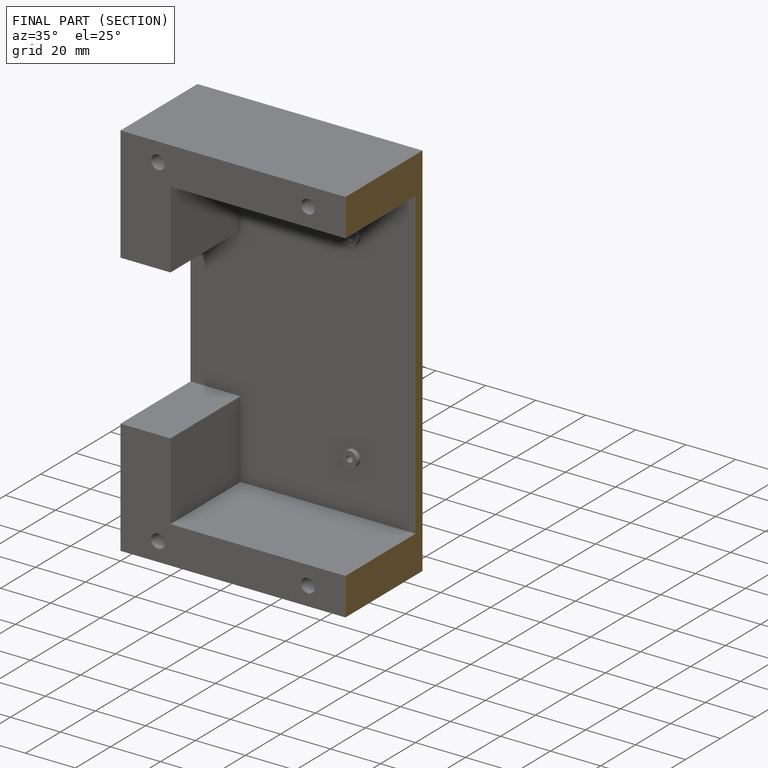
[diagram: finished part — half-section view (interior)]
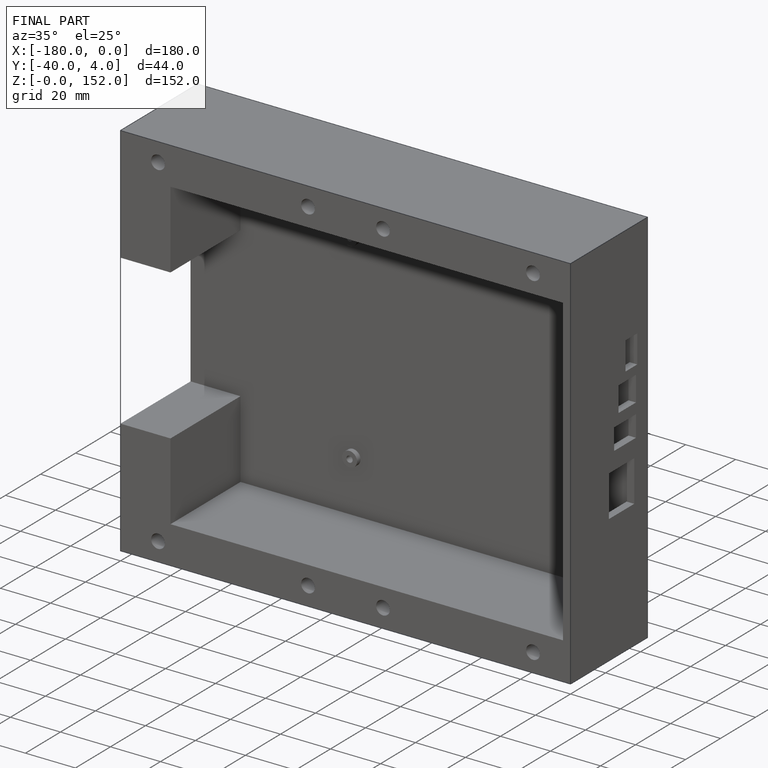
[diagram: finished part — iso view with bounding-box wireframe]
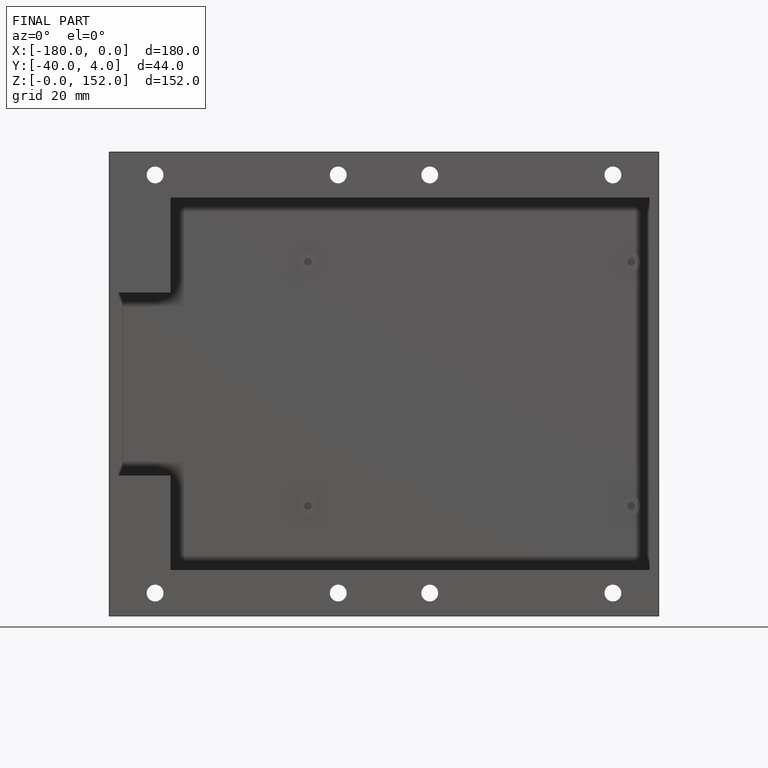
[diagram: finished part — front view with bounding-box wireframe]
